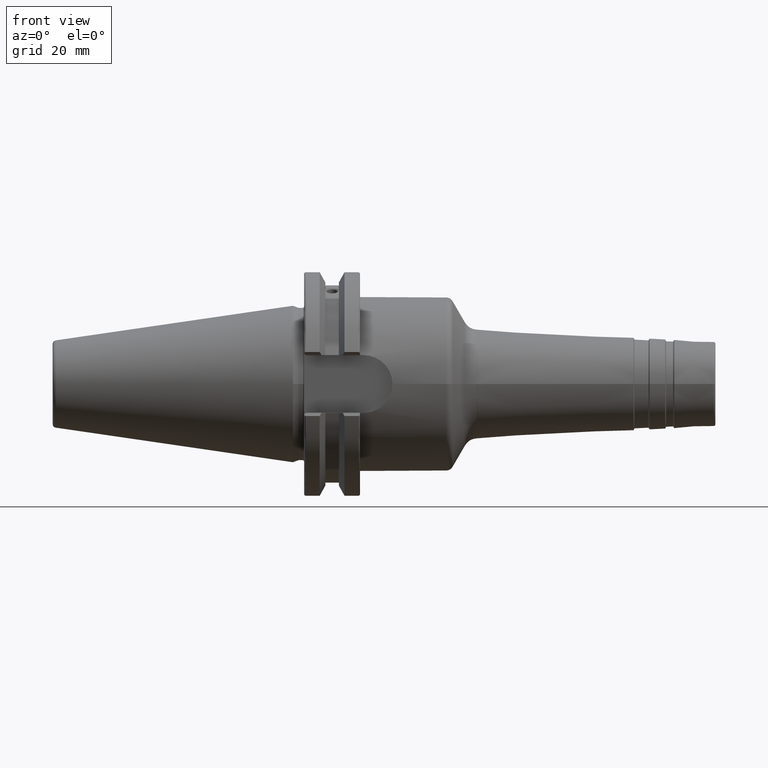
[diagram: clean part render]
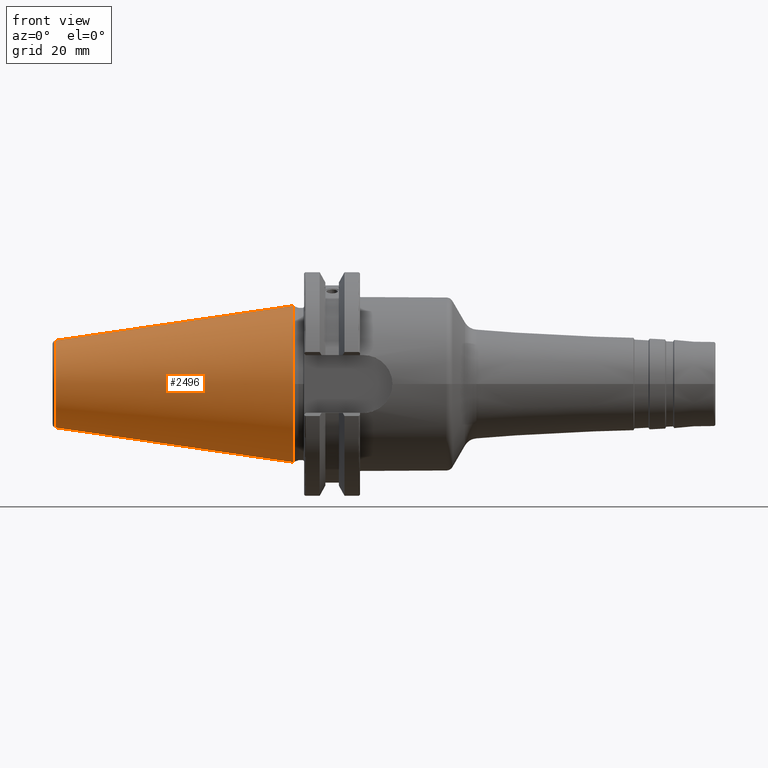
[diagram: same view with one face highlighted and labeled with its STEP entity id]
A machine part, front view. The second image highlights one B-rep face of the part: STEP entity #2496.
In plain terms, the highlighted conical surface has half-angle 8.297 deg.
Its self-contained STEP definition (entity closure, byte-faithful):
#47=CARTESIAN_POINT('',(-6.739430689359E1,0.E0,0.E0));
#48=DIRECTION('',(-1.E0,0.E0,0.E0));
#49=DIRECTION('',(0.E0,0.E0,-1.E0));
#50=AXIS2_PLACEMENT_3D('',#47,#48,#49);
#52=DIRECTION('',(-9.895329809873E-1,-1.311204003070E-12,-1.443068935927E-1));
#53=VECTOR('',#52,6.810718610546E1);
#54=CARTESIAN_POINT('',(0.E0,0.E0,2.2225E1));
#55=LINE('',#54,#53);
#56=CARTESIAN_POINT('',(1.989519660128E-13,0.E0,0.E0));
#57=DIRECTION('',(1.E0,0.E0,0.E0));
#58=DIRECTION('',(0.E0,0.E0,1.E0));
#59=AXIS2_PLACEMENT_3D('',#56,#57,#58);
#61=CARTESIAN_POINT('',(-2.842170943040E-14,0.E0,0.E0));
#62=DIRECTION('',(1.E0,0.E0,0.E0));
#63=DIRECTION('',(0.E0,-1.E0,0.E0));
#64=AXIS2_PLACEMENT_3D('',#61,#62,#63);
#66=DIRECTION('',(-9.895329809873E-1,1.311191833568E-12,1.443068935927E-1));
#67=VECTOR('',#66,6.810718610546E1);
#68=CARTESIAN_POINT('',(0.E0,0.E0,-2.2225E1));
#69=LINE('',#68,#67);
#2087=CARTESIAN_POINT('',(-6.739430689359E1,0.E0,-1.239666354178E1));
#2088=CARTESIAN_POINT('',(-6.739430689359E1,0.E0,1.239666354178E1));
#2089=VERTEX_POINT('',#2087);
#2090=VERTEX_POINT('',#2088);
#2103=CARTESIAN_POINT('',(0.E0,-2.2225E1,-1.633945587913E-8));
#2104=VERTEX_POINT('',#2103);
#2107=CARTESIAN_POINT('',(1.989519660128E-13,0.E0,2.2225E1));
#2108=VERTEX_POINT('',#2107);
#2109=CARTESIAN_POINT('',(-2.842170943040E-14,0.E0,-2.2225E1));
#2110=VERTEX_POINT('',#2109);
#2482=CARTESIAN_POINT('',(-3.369715344680E1,0.E0,0.E0));
#2483=DIRECTION('',(1.E0,0.E0,0.E0));
#2484=DIRECTION('',(0.E0,0.E0,1.E0));
#2485=AXIS2_PLACEMENT_3D('',#2482,#2483,#2484);
#2486=CONICAL_SURFACE('',#2485,1.731083177089E1,8.297145E0);
#2487=ORIENTED_EDGE('',*,*,#2476,.T.);
#2488=ORIENTED_EDGE('',*,*,#2432,.F.);
#2490=ORIENTED_EDGE('',*,*,#2489,.T.);
#2492=ORIENTED_EDGE('',*,*,#2491,.T.);
#2493=ORIENTED_EDGE('',*,*,#2426,.T.);
#2494=EDGE_LOOP('',(#2487,#2488,#2490,#2492,#2493));
#2495=FACE_OUTER_BOUND('',#2494,.F.);
#2496=ADVANCED_FACE('',(#2495),#2486,.T.);
#51=CIRCLE('',#50,1.239666354178E1);
#60=CIRCLE('',#59,2.2225E1);
#65=CIRCLE('',#64,2.2225E1);
#2426=EDGE_CURVE('',#2110,#2089,#69,.T.);
#2432=EDGE_CURVE('',#2108,#2090,#55,.T.);
#2476=EDGE_CURVE('',#2089,#2090,#51,.T.);
#2489=EDGE_CURVE('',#2108,#2104,#60,.T.);
#2491=EDGE_CURVE('',#2104,#2110,#65,.T.);